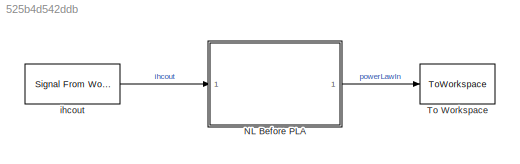
MODEL slx_525b4d542ddb
KIND model
CONFIG AbsTol = auto
CONFIG EnableMultiTasking = off
CONFIG FixedStep = auto
CONFIG InitFcn = NL_Before_PLA_Test_Parameters\n
CONFIG MaxStep = auto
CONFIG MinStep = auto
CONFIG RelTol = 1e-3
CONFIG SampleTimeConstraint = Unconstrained
CONFIG Solver = VariableStepAuto
CONFIG SolverName = VariableStepAuto
CONFIG StartTime = 0.0
CONFIG StopFcn = Verify_NL_Before_PLA
CONFIG StopTime = testtime
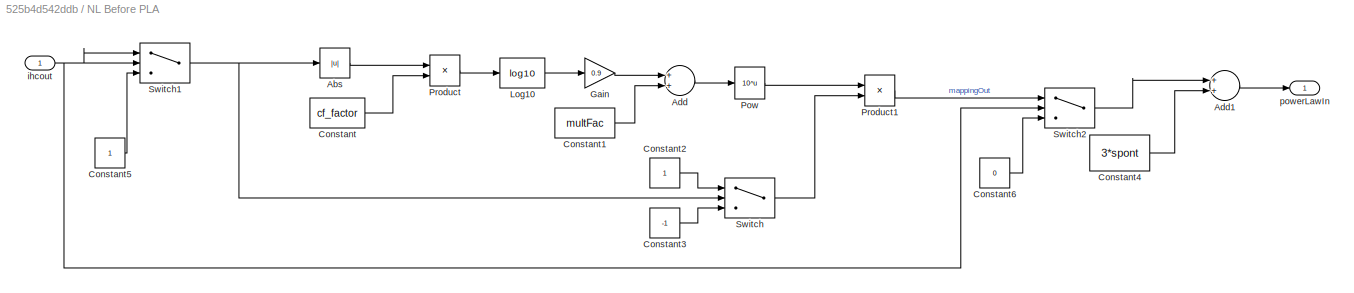
BLOCK [SubSystem] NL Before PLA
  Ports = [1, 1]
  RequestExecContextInheritance = off
  ShowPortLabels = none
BLOCK [Abs] NL Before PLA/Abs
  SaturateOnIntegerOverflow = off
BLOCK [Sum] NL Before PLA/Add
  InputSameDT = off
  OutDataTypeStr = Inherit: Inherit via internal rule
  Ports = [2, 1]
  SaturateOnIntegerOverflow = off
BLOCK [Sum] NL Before PLA/Add1
  InputSameDT = off
  OutDataTypeStr = Inherit: Inherit via internal rule
  Ports = [2, 1]
  SaturateOnIntegerOverflow = off
BLOCK [Constant] NL Before PLA/Constant
  SampleTime = -1
  Value = cf_factor
BLOCK [Constant] NL Before PLA/Constant1
  SampleTime = -1
  Value = multFac
BLOCK [Constant] NL Before PLA/Constant2
  SampleTime = -1
BLOCK [Constant] NL Before PLA/Constant3
  SampleTime = -1
  Value = -1
BLOCK [Constant] NL Before PLA/Constant4
  SampleTime = -1
  Value = 3*spont
BLOCK [Constant] NL Before PLA/Constant5
  SampleTime = -1
BLOCK [Constant] NL Before PLA/Constant6
  SampleTime = -1
  Value = 0
BLOCK [Gain] NL Before PLA/Gain
  Gain = 0.9
  OutDataTypeStr = Inherit: Inherit via internal rule
  ParamDataTypeStr = Inherit: Inherit via internal rule
  SaturateOnIntegerOverflow = off
BLOCK [Math] NL Before PLA/Log10
  Operator = log10
  Ports = [1, 1]
  RndMeth = Zero
BLOCK [Math] NL Before PLA/Pow
  Operator = 10^u
  Ports = [1, 1]
  RndMeth = Zero
BLOCK [Product] NL Before PLA/Product
  InputSameDT = off
  OutDataTypeStr = Inherit: Inherit via internal rule
  Ports = [2, 1]
  RndMeth = Floor
  SaturateOnIntegerOverflow = off
BLOCK [Product] NL Before PLA/Product1
  InputSameDT = off
  OutDataTypeStr = Inherit: Inherit via internal rule
  Ports = [2, 1]
  RndMeth = Floor
  SaturateOnIntegerOverflow = off
BLOCK [Switch] NL Before PLA/Switch
  InputSameDT = off
  SaturateOnIntegerOverflow = off
BLOCK [Switch] NL Before PLA/Switch1
  Criteria = u2 ~= 0
  InputSameDT = off
  SaturateOnIntegerOverflow = off
  ZeroCross = off
BLOCK [Switch] NL Before PLA/Switch2
  Criteria = u2 ~= 0
  InputSameDT = off
  SaturateOnIntegerOverflow = off
  ZeroCross = off
BLOCK [Inport] NL Before PLA/ihcout
  IconDisplay = Port number
BLOCK [Outport] NL Before PLA/powerLawIn
  IconDisplay = Port number
BLOCK [ToWorkspace] To Workspace
  MaxDataPoints = inf
  Ports = [1]
  SampleTime = -1
  Save2DSignal = 2-D array (concatenate along first dimension)
  VariableName = powerLawIn
BLOCK [Reference] ihcout   REF=dspsrcs4/Signal From
Workspace
  Ports = [0, 1]
  SourceBlock = dspsrcs4/Signal From\nWorkspace
  SourceProductBaseCode = DS
  SourceProductName = DSP System Toolbox
  SourceType = Signal From Workspace
LINE NL Before PLA/Abs:1 -> NL Before PLA/Product:1
LINE NL Before PLA/Add1:1 -> NL Before PLA/powerLawIn:1
LINE NL Before PLA/Add:1 -> NL Before PLA/Pow:1
LINE NL Before PLA/Constant1:1 -> NL Before PLA/Add:2
LINE NL Before PLA/Constant2:1 -> NL Before PLA/Switch:1
LINE NL Before PLA/Constant3:1 -> NL Before PLA/Switch:3
LINE NL Before PLA/Constant4:1 -> NL Before PLA/Add1:2
LINE NL Before PLA/Constant5:1 -> NL Before PLA/Switch1:3
LINE NL Before PLA/Constant6:1 -> NL Before PLA/Switch2:3
LINE NL Before PLA/Constant:1 -> NL Before PLA/Product:2
LINE NL Before PLA/Gain:1 -> NL Before PLA/Add:1
LINE NL Before PLA/Log10:1 -> NL Before PLA/Gain:1
LINE NL Before PLA/Pow:1 -> NL Before PLA/Product1:1
LINE NL Before PLA/Product1:1 -> NL Before PLA/Switch2:1
LINE NL Before PLA/Product:1 -> NL Before PLA/Log10:1
NET NL Before PLA/Switch1:1 -> NL Before PLA/Abs:1, NL Before PLA/Switch:2
LINE NL Before PLA/Switch2:1 -> NL Before PLA/Add1:1
LINE NL Before PLA/Switch:1 -> NL Before PLA/Product1:2
NET NL Before PLA/ihcout:1 -> NL Before PLA/Switch1:1, NL Before PLA/Switch1:2, NL Before PLA/Switch2:2
LINE NL Before PLA:1 -> To Workspace:1
LINE ihcout :1 -> NL Before PLA:1
note: NET lines group one-source signal fan-out (src -> all destinations, sorted); 1:1 wires keep LINE
